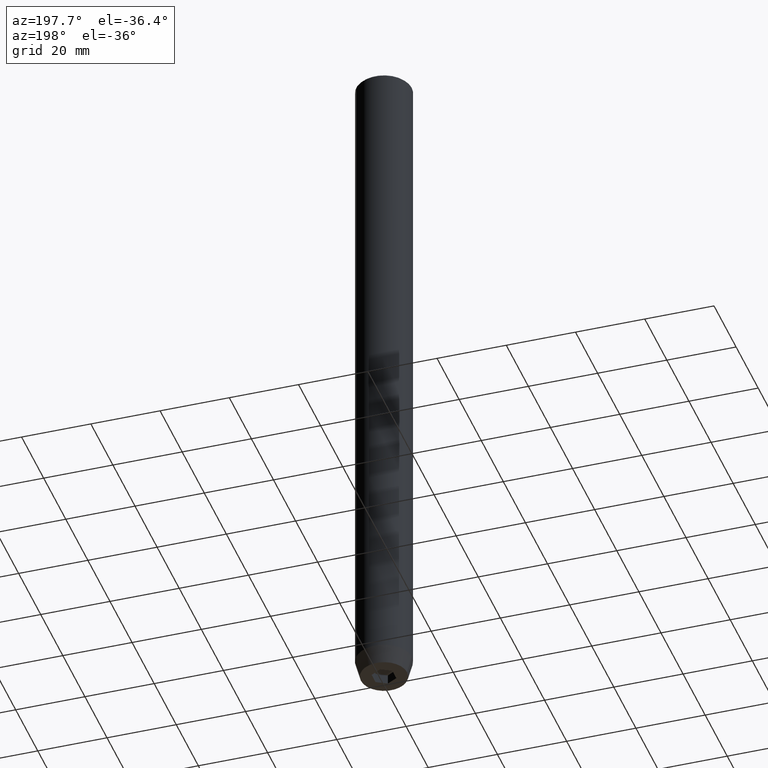
[diagram: clean part render]
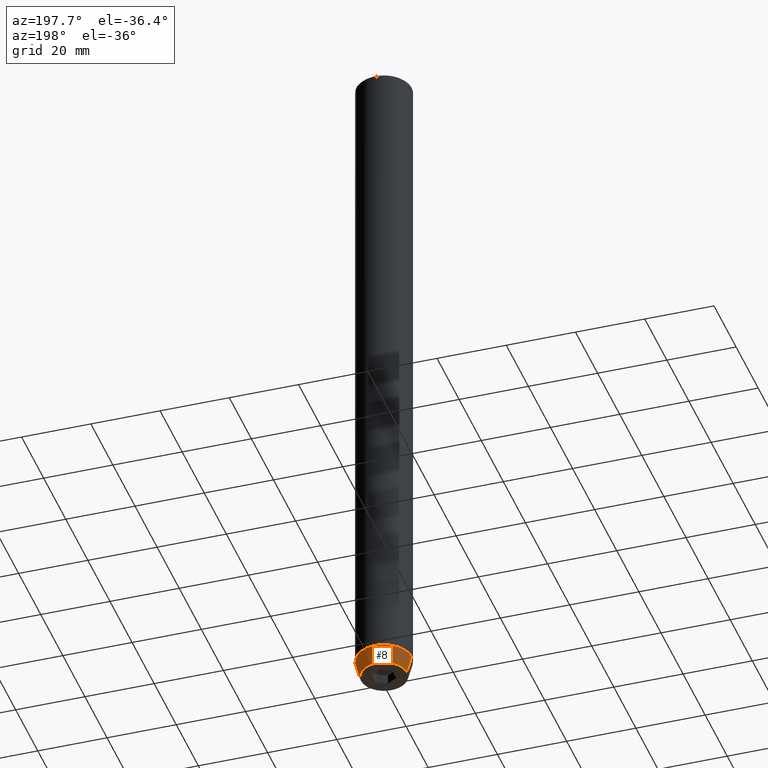
[diagram: same view with one face highlighted and labeled with its STEP entity id]
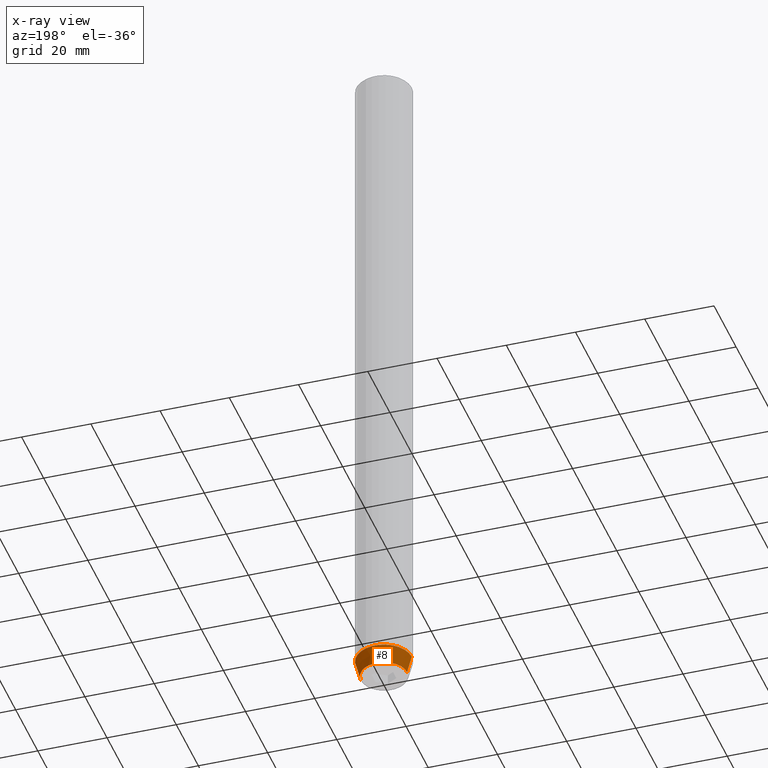
[diagram: x-ray of the same camera — body ghosted, the highlighted face saturated]
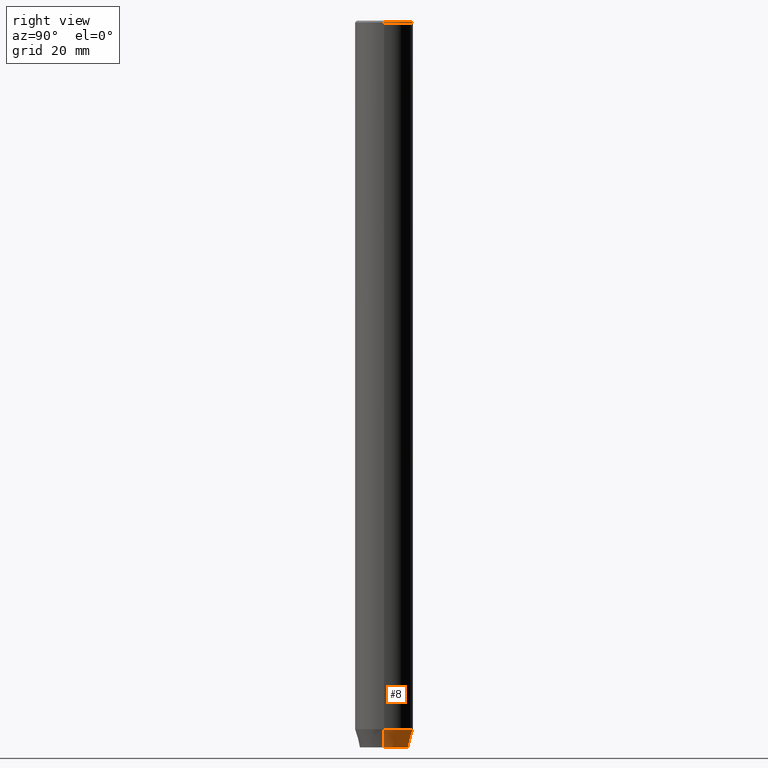
[diagram: same view with one face highlighted and labeled with its STEP entity id]
A machine part, auxiliary view. The second image highlights one B-rep face of the part: STEP entity #8.
The next image is the same camera in x-ray: the body ghosted, the highlighted face saturated — about 0% of this face is hidden behind the body in this view.
A second angle (right view) of the same face is appended — the face is thin or edge-on in the first view.
In plain terms, the highlighted conical surface has half-angle 15 deg.
Its self-contained STEP definition (entity closure, byte-faithful):
#8 = ADVANCED_FACE ( 'NONE', ( #364 ), #252, .T. ) ;
#10 = CARTESIAN_POINT ( 'NONE',  ( 8.000000000000000000, 0.000000000000000000, -195.0000000000000000 ) ) ;
#19 = EDGE_CURVE ( 'NONE', #490, #502, #282, .T. ) ;
#44 = ORIENTED_EDGE ( 'NONE', *, *, #19, .F. ) ;
#45 = CARTESIAN_POINT ( 'NONE',  ( -8.000000000000000000, 9.797174393178825657E-16, -195.0000000000000000 ) ) ;
#53 = ORIENTED_EDGE ( 'NONE', *, *, #541, .T. ) ;
#58 = DIRECTION ( 'NONE',  ( 1.000000000000000000, 0.000000000000000000, 0.000000000000000000 ) ) ;
#89 = CARTESIAN_POINT ( 'NONE',  ( 8.000000000000000000, 0.000000000000000000, -195.0000000000000000 ) ) ;
#100 = CARTESIAN_POINT ( 'NONE',  ( 6.660254037844381969, 0.000000000000000000, -200.0000000000000000 ) ) ;
#103 = CARTESIAN_POINT ( 'NONE',  ( 0.000000000000000000, 0.000000000000000000, -195.0000000000000000 ) ) ;
#107 = DIRECTION ( 'NONE',  ( 0.2588190451025213501, 0.000000000000000000, 0.9659258262890680902 ) ) ;
#112 = AXIS2_PLACEMENT_3D ( 'NONE', #103, #411, #361 ) ;
#113 = AXIS2_PLACEMENT_3D ( 'NONE', #359, #303, #220 ) ;
#196 = CARTESIAN_POINT ( 'NONE',  ( 0.000000000000000000, 0.000000000000000000, -200.0000000000000000 ) ) ;
#220 = DIRECTION ( 'NONE',  ( 1.000000000000000000, 0.000000000000000000, 0.000000000000000000 ) ) ;
#252 = CONICAL_SURFACE ( 'NONE', #112, 8.000000000000000000, 0.2617993877991500740 ) ;
#275 = CARTESIAN_POINT ( 'NONE',  ( -8.000000000000000000, 9.797174393178825657E-16, -195.0000000000000000 ) ) ;
#282 = LINE ( 'NONE', #10, #518 ) ;
#303 = DIRECTION ( 'NONE',  ( -0.000000000000000000, -0.000000000000000000, 1.000000000000000000 ) ) ;
#309 = VECTOR ( 'NONE', #448, 1000.000000000000000 ) ;
#353 = LINE ( 'NONE', #45, #309 ) ;
#354 = AXIS2_PLACEMENT_3D ( 'NONE', #196, #512, #58 ) ;
#359 = CARTESIAN_POINT ( 'NONE',  ( 0.000000000000000000, 0.000000000000000000, -195.0000000000000000 ) ) ;
#361 = DIRECTION ( 'NONE',  ( 1.000000000000000000, 0.000000000000000000, 0.000000000000000000 ) ) ;
#364 = FACE_OUTER_BOUND ( 'NONE', #428, .T. ) ;
#376 = ORIENTED_EDGE ( 'NONE', *, *, #438, .T. ) ;
#389 = EDGE_CURVE ( 'NONE', #502, #445, #432, .T. ) ;
#397 = VERTEX_POINT ( 'NONE', #489 ) ;
#411 = DIRECTION ( 'NONE',  ( -0.000000000000000000, -0.000000000000000000, 1.000000000000000000 ) ) ;
#428 = EDGE_LOOP ( 'NONE', ( #53, #376, #469, #44 ) ) ;
#432 = CIRCLE ( 'NONE', #113, 8.000000000000000000 ) ;
#438 = EDGE_CURVE ( 'NONE', #397, #445, #353, .T. ) ;
#445 = VERTEX_POINT ( 'NONE', #275 ) ;
#448 = DIRECTION ( 'NONE',  ( -0.2588190451025213501, 3.169619151431772337E-17, 0.9659258262890680902 ) ) ;
#469 = ORIENTED_EDGE ( 'NONE', *, *, #389, .F. ) ;
#489 = CARTESIAN_POINT ( 'NONE',  ( -6.660254037844381969, 8.976816591066591237E-16, -200.0000000000000000 ) ) ;
#490 = VERTEX_POINT ( 'NONE', #100 ) ;
#502 = VERTEX_POINT ( 'NONE', #89 ) ;
#512 = DIRECTION ( 'NONE',  ( -0.000000000000000000, -0.000000000000000000, 1.000000000000000000 ) ) ;
#518 = VECTOR ( 'NONE', #107, 1000.000000000000000 ) ;
#541 = EDGE_CURVE ( 'NONE', #490, #397, #579, .T. ) ;
#579 = CIRCLE ( 'NONE', #354, 6.660254037844381969 ) ;